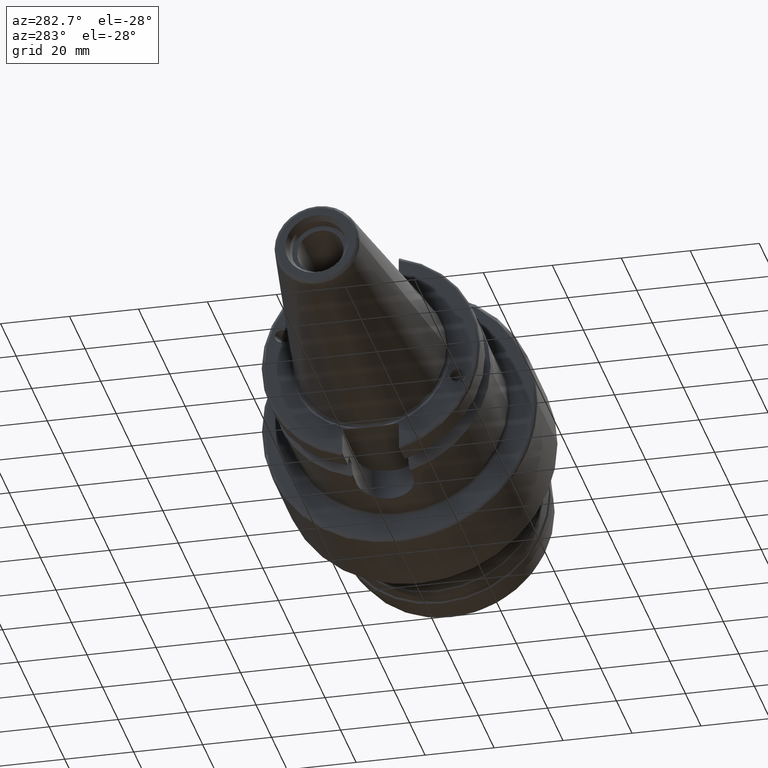
[diagram: clean part render]
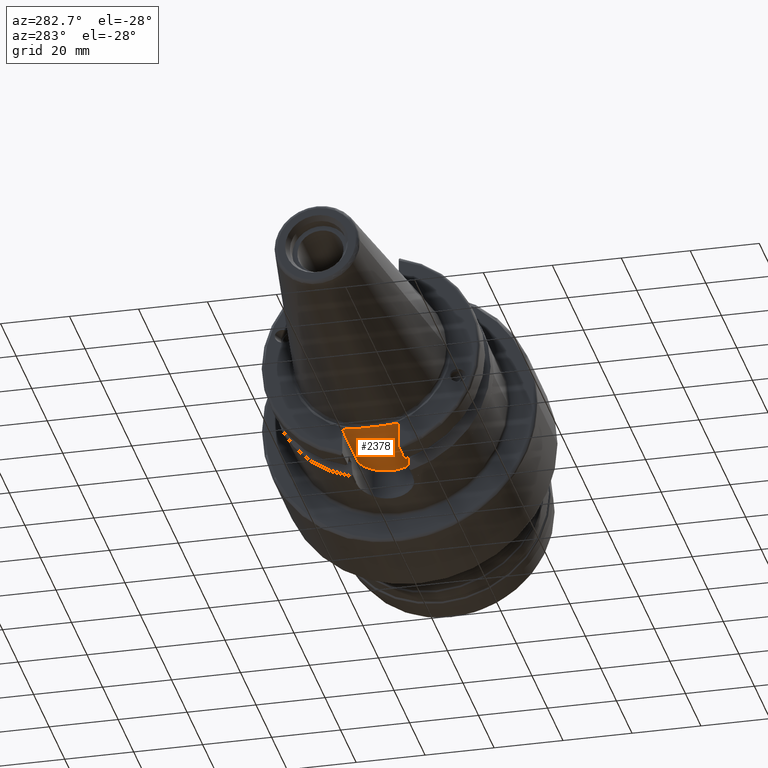
[diagram: same view with one face highlighted and labeled with its STEP entity id]
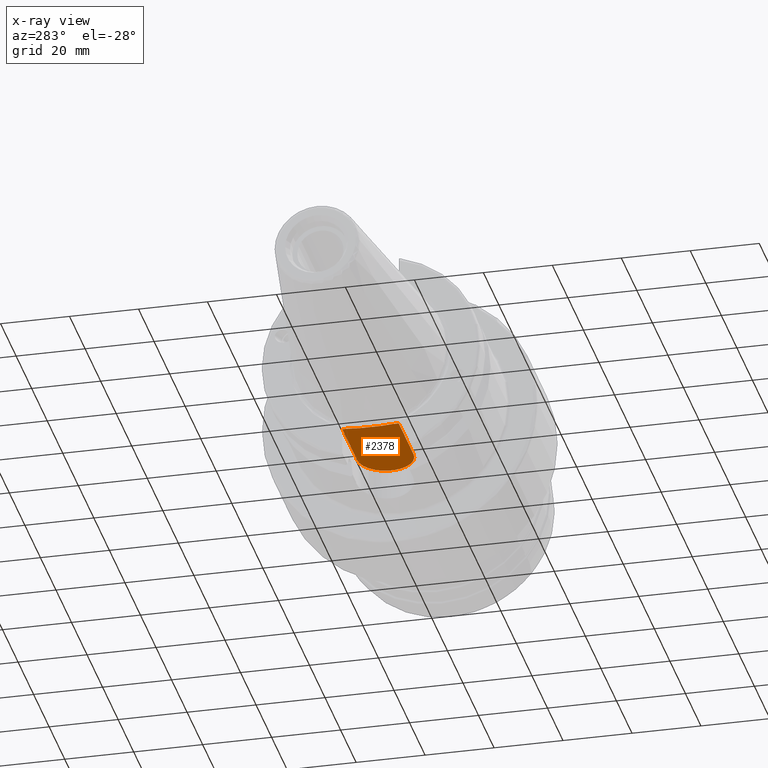
[diagram: x-ray of the same camera — body ghosted, the highlighted face saturated]
A machine part, auxiliary view. The second image highlights one B-rep face of the part: STEP entity #2378.
The next image is the same camera in x-ray: the body ghosted, the highlighted face saturated — about 0% of this face is hidden behind the body in this view.
In plain terms, the highlighted planar face has unit normal (0, 0, 1).
Its self-contained STEP definition (entity closure, byte-faithful):
#30=(
BOUNDED_CURVE()
B_SPLINE_CURVE(2,(#4595,#4596,#4597),.UNSPECIFIED.,.F.,.F.)
B_SPLINE_CURVE_WITH_KNOTS((3,3),(0.,0.339841691449478),.UNSPECIFIED.)
CURVE()
GEOMETRIC_REPRESENTATION_ITEM()
RATIONAL_B_SPLINE_CURVE((1.,1.00266518417081,1.))
REPRESENTATION_ITEM('')
);
#31=(
BOUNDED_CURVE()
B_SPLINE_CURVE(2,(#4600,#4601,#4602),.UNSPECIFIED.,.F.,.F.)
B_SPLINE_CURVE_WITH_KNOTS((3,3),(0.,0.339841691449478),.UNSPECIFIED.)
CURVE()
GEOMETRIC_REPRESENTATION_ITEM()
RATIONAL_B_SPLINE_CURVE((1.,1.00266518417081,1.))
REPRESENTATION_ITEM('')
);
#82=PLANE('',#2715);
#293=FACE_OUTER_BOUND('',#424,.T.);
#424=EDGE_LOOP('',(#2145,#2146,#2147,#2148,#2149,#2150,#2151,#2152));
#523=LINE('',#4459,#632);
#524=LINE('',#4463,#633);
#540=LINE('',#4558,#649);
#542=LINE('',#4568,#651);
#547=LINE('',#4599,#656);
#632=VECTOR('',#3357,10.);
#633=VECTOR('',#3360,10.);
#649=VECTOR('',#3420,10.);
#651=VECTOR('',#3426,10.);
#656=VECTOR('',#3453,10.);
#780=CIRCLE('',#2570,8.19);
#979=VERTEX_POINT('',#3940);
#980=VERTEX_POINT('',#3942);
#1085=VERTEX_POINT('',#4456);
#1086=VERTEX_POINT('',#4458);
#1087=VERTEX_POINT('',#4460);
#1088=VERTEX_POINT('',#4462);
#1116=VERTEX_POINT('',#4594);
#1117=VERTEX_POINT('',#4598);
#1280=EDGE_CURVE('',#980,#979,#780,.T.);
#1425=EDGE_CURVE('',#1085,#1086,#523,.T.);
#1427=EDGE_CURVE('',#1087,#1088,#524,.T.);
#1461=EDGE_CURVE('',#979,#1088,#540,.T.);
#1465=EDGE_CURVE('',#980,#1085,#542,.T.);
#1476=EDGE_CURVE('',#1116,#1087,#30,.T.);
#1477=EDGE_CURVE('',#1117,#1116,#547,.T.);
#1478=EDGE_CURVE('',#1086,#1117,#31,.T.);
#2145=ORIENTED_EDGE('',*,*,#1461,.T.);
#2146=ORIENTED_EDGE('',*,*,#1427,.F.);
#2147=ORIENTED_EDGE('',*,*,#1476,.F.);
#2148=ORIENTED_EDGE('',*,*,#1477,.F.);
#2149=ORIENTED_EDGE('',*,*,#1478,.F.);
#2150=ORIENTED_EDGE('',*,*,#1425,.F.);
#2151=ORIENTED_EDGE('',*,*,#1465,.F.);
#2152=ORIENTED_EDGE('',*,*,#1280,.T.);
#2378=ADVANCED_FACE('',(#293),#82,.F.);
#2570=AXIS2_PLACEMENT_3D('',#3943,#3088,#3089);
#2715=AXIS2_PLACEMENT_3D('',#4593,#3451,#3452);
#3088=DIRECTION('center_axis',(0.,0.,-1.));
#3089=DIRECTION('ref_axis',(5.42233467460394E-16,1.,0.));
#3357=DIRECTION('',(0.,-1.,0.));
#3360=DIRECTION('',(0.,-1.,0.));
#3420=DIRECTION('',(-1.,0.,0.));
#3426=DIRECTION('',(-1.,-1.16558847729675E-16,0.));
#3451=DIRECTION('center_axis',(0.,0.,1.));
#3452=DIRECTION('ref_axis',(1.,0.,0.));
#3453=DIRECTION('',(0.,-1.,0.));
#3940=CARTESIAN_POINT('',(20.05,-8.19,-22.6));
#3942=CARTESIAN_POINT('',(20.05,8.19,-22.6));
#3943=CARTESIAN_POINT('Origin',(20.05,0.,-22.6));
#4456=CARTESIAN_POINT('',(0.999999999999998,8.19,-22.6));
#4458=CARTESIAN_POINT('',(0.999999999999997,6.4412731660752,-22.6));
#4459=CARTESIAN_POINT('',(1.,15.875,-22.6));
#4460=CARTESIAN_POINT('',(1.,-6.44127316607517,-22.6));
#4462=CARTESIAN_POINT('',(1.,-8.19,-22.6));
#4463=CARTESIAN_POINT('',(1.,15.875,-22.6));
#4558=CARTESIAN_POINT('',(20.05,-8.19,-22.6));
#4568=CARTESIAN_POINT('',(20.05,8.19,-22.6));
#4593=CARTESIAN_POINT('Origin',(14.62,-5.55111512312578E-16,-22.6));
#4594=CARTESIAN_POINT('',(1.4,-3.06715581894774,-22.6));
#4595=CARTESIAN_POINT('Ctrl Pts',(1.4,-3.06715581894779,-22.6));
#4596=CARTESIAN_POINT('Ctrl Pts',(1.27097107950098,-4.7289737297758,-22.6));
#4597=CARTESIAN_POINT('Ctrl Pts',(1.,-6.44127316607519,-22.6));
#4598=CARTESIAN_POINT('',(1.4,3.06715581894774,-22.6));
#4599=CARTESIAN_POINT('',(1.4,11.4035898384862,-22.6));
#4600=CARTESIAN_POINT('Ctrl Pts',(1.,6.44127316607519,-22.6));
#4601=CARTESIAN_POINT('Ctrl Pts',(1.27097107950098,4.7289737297758,-22.6));
#4602=CARTESIAN_POINT('Ctrl Pts',(1.4,3.06715581894779,-22.6));